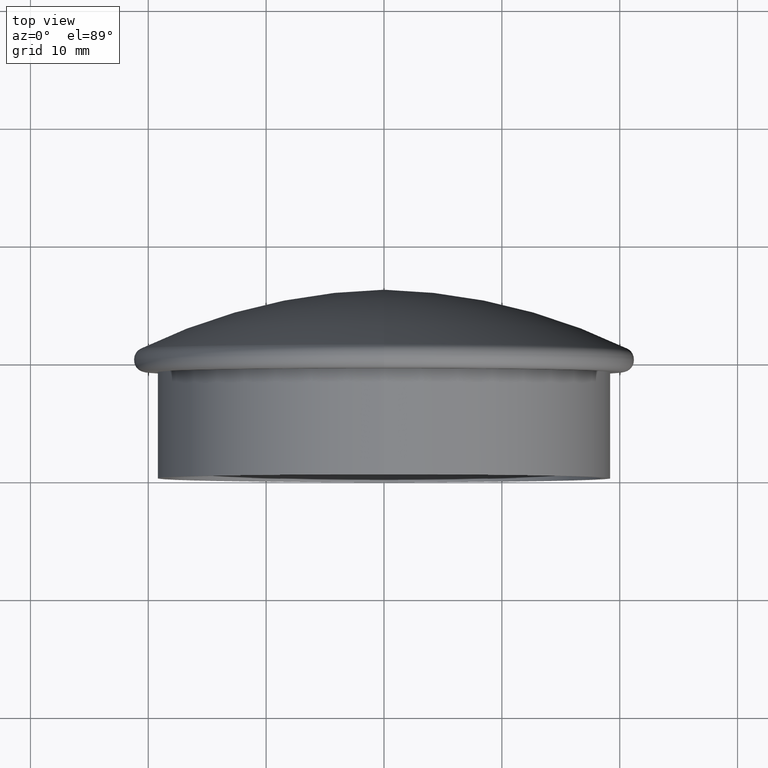
[diagram: clean part render]
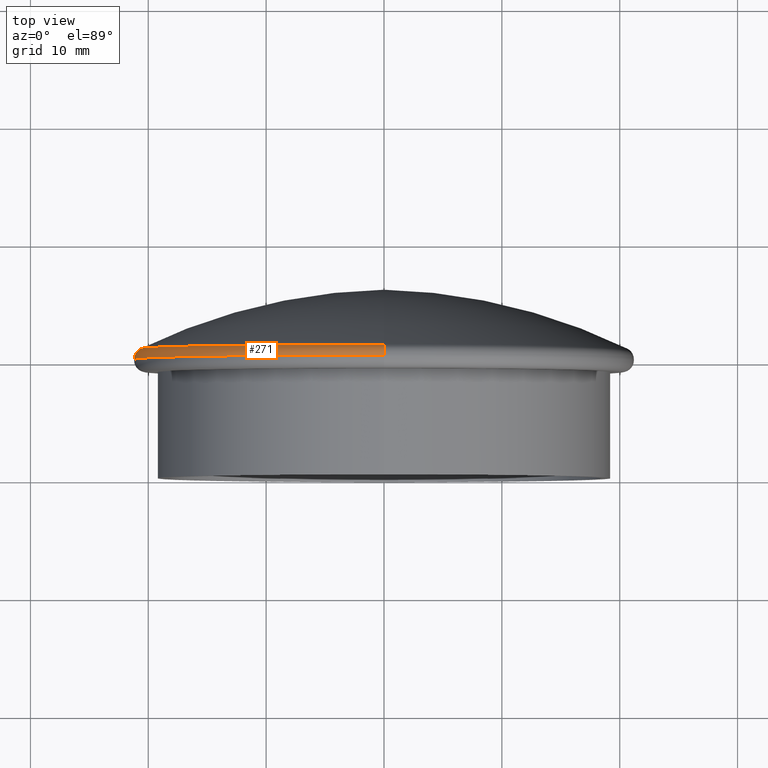
[diagram: same view with one face highlighted and labeled with its STEP entity id]
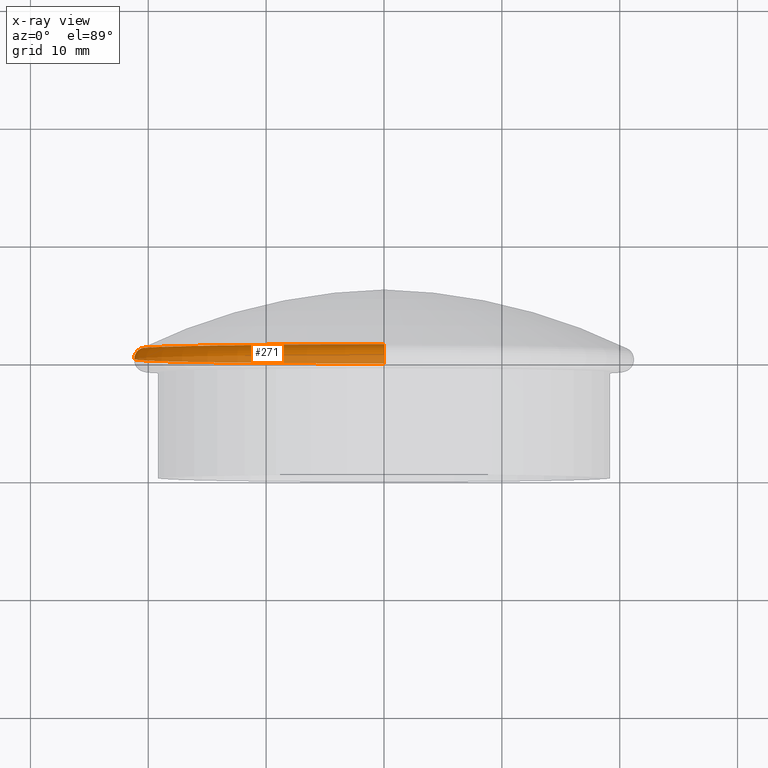
[diagram: x-ray of the same camera — body ghosted, the highlighted face saturated]
A machine part, top view. The second image highlights one B-rep face of the part: STEP entity #271.
The next image is the same camera in x-ray: the body ghosted, the highlighted face saturated — about 40% of this face is hidden behind the body in this view.
In plain terms, the highlighted toroidal blend (fillet) surface has major radius 20.2 mm and minor (blend) radius 1 mm.
Its self-contained STEP definition (entity closure, byte-faithful):
#46 = ORIENTED_EDGE ( 'NONE', *, *, #191, .F. ) ;
#69 = EDGE_LOOP ( 'NONE', ( #410, #365, #164, #46 ) ) ;
#88 = VERTEX_POINT ( 'NONE', #617 ) ;
#90 = AXIS2_PLACEMENT_3D ( 'NONE', #512, #194, #261 ) ;
#99 = VERTEX_POINT ( 'NONE', #517 ) ;
#102 = DIRECTION ( 'NONE',  ( -0.0000000000000000000, -1.000000000000000000, -0.0000000000000000000 ) ) ;
#105 = AXIS2_PLACEMENT_3D ( 'NONE', #608, #102, #309 ) ;
#143 = AXIS2_PLACEMENT_3D ( 'NONE', #300, #501, #179 ) ;
#164 = ORIENTED_EDGE ( 'NONE', *, *, #425, .T. ) ;
#179 = DIRECTION ( 'NONE',  ( 0.0000000000000000000, 0.0000000000000000000, -1.000000000000000000 ) ) ;
#191 = EDGE_CURVE ( 'NONE', #492, #509, #287, .T. ) ;
#194 = DIRECTION ( 'NONE',  ( -0.0000000000000000000, -1.000000000000000000, -0.0000000000000000000 ) ) ;
#195 = CARTESIAN_POINT ( 'NONE',  ( 0.0000000000000000000, 10.10028188096572100, -21.19999999999999900 ) ) ;
#221 = EDGE_CURVE ( 'NONE', #99, #88, #258, .T. ) ;
#246 = CARTESIAN_POINT ( 'NONE',  ( 0.0000000000000000000, 10.10028188096572100, -20.19999999999999900 ) ) ;
#258 = CIRCLE ( 'NONE', #90, 20.63647142664946100 ) ;
#261 = DIRECTION ( 'NONE',  ( 0.0000000000000000000, 0.0000000000000000000, -1.000000000000000000 ) ) ;
#271 = ADVANCED_FACE ( 'NONE', ( #575 ), #437, .T. ) ;
#287 = CIRCLE ( 'NONE', #105, 21.19999999999999900 ) ;
#299 = AXIS2_PLACEMENT_3D ( 'NONE', #246, #406, #561 ) ;
#300 = CARTESIAN_POINT ( 'NONE',  ( 0.0000000000000000000, 10.10028188096572100, 0.0000000000000000000 ) ) ;
#309 = DIRECTION ( 'NONE',  ( 0.0000000000000000000, 0.0000000000000000000, -1.000000000000000000 ) ) ;
#325 = DIRECTION ( 'NONE',  ( 1.000000000000000000, 0.0000000000000000000, -1.224646799147353200E-016 ) ) ;
#359 = CARTESIAN_POINT ( 'NONE',  ( 2.596251214192388800E-015, 10.10028188096572100, 21.19999999999999900 ) ) ;
#365 = ORIENTED_EDGE ( 'NONE', *, *, #221, .T. ) ;
#397 = CIRCLE ( 'NONE', #504, 1.000000000000000900 ) ;
#406 = DIRECTION ( 'NONE',  ( -1.000000000000000000, 0.0000000000000000000, 0.0000000000000000000 ) ) ;
#410 = ORIENTED_EDGE ( 'NONE', *, *, #411, .F. ) ;
#411 = EDGE_CURVE ( 'NONE', #99, #492, #397, .T. ) ;
#425 = EDGE_CURVE ( 'NONE', #88, #509, #630, .T. ) ;
#437 = TOROIDAL_SURFACE ( 'NONE', #143, 20.19999999999999900, 1.000000000000000400 ) ;
#469 = CARTESIAN_POINT ( 'NONE',  ( 2.473786534277653200E-015, 10.10028188096572100, 20.19999999999999900 ) ) ;
#479 = DIRECTION ( 'NONE',  ( -1.224646799147353500E-016, 0.0000000000000000000, -1.000000000000000000 ) ) ;
#492 = VERTEX_POINT ( 'NONE', #359 ) ;
#501 = DIRECTION ( 'NONE',  ( -0.0000000000000000000, -1.000000000000000000, -0.0000000000000000000 ) ) ;
#504 = AXIS2_PLACEMENT_3D ( 'NONE', #469, #325, #479 ) ;
#509 = VERTEX_POINT ( 'NONE', #195 ) ;
#512 = CARTESIAN_POINT ( 'NONE',  ( 0.0000000000000000000, 10.99999999999999600, 0.0000000000000000000 ) ) ;
#517 = CARTESIAN_POINT ( 'NONE',  ( 2.561745041013298500E-015, 10.99999999999999600, 20.63647142664946100 ) ) ;
#561 = DIRECTION ( 'NONE',  ( 0.0000000000000000000, 0.0000000000000000000, 1.000000000000000000 ) ) ;
#575 = FACE_OUTER_BOUND ( 'NONE', #69, .T. ) ;
#608 = CARTESIAN_POINT ( 'NONE',  ( 0.0000000000000000000, 10.10028188096572100, 0.0000000000000000000 ) ) ;
#617 = CARTESIAN_POINT ( 'NONE',  ( 0.0000000000000000000, 10.99999999999999600, -20.63647142664946100 ) ) ;
#630 = CIRCLE ( 'NONE', #299, 1.000000000000000900 ) ;